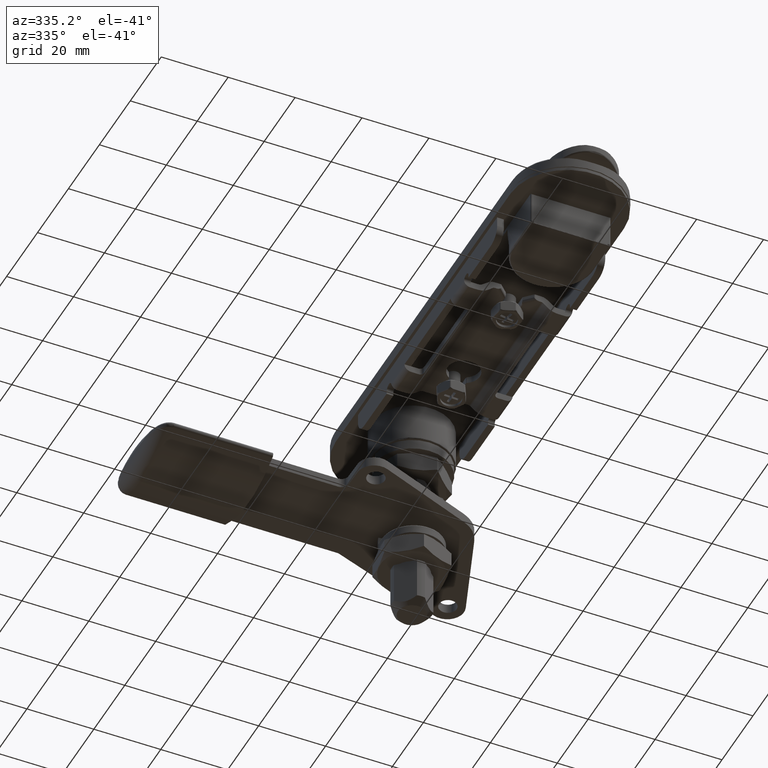
[diagram: clean part render]
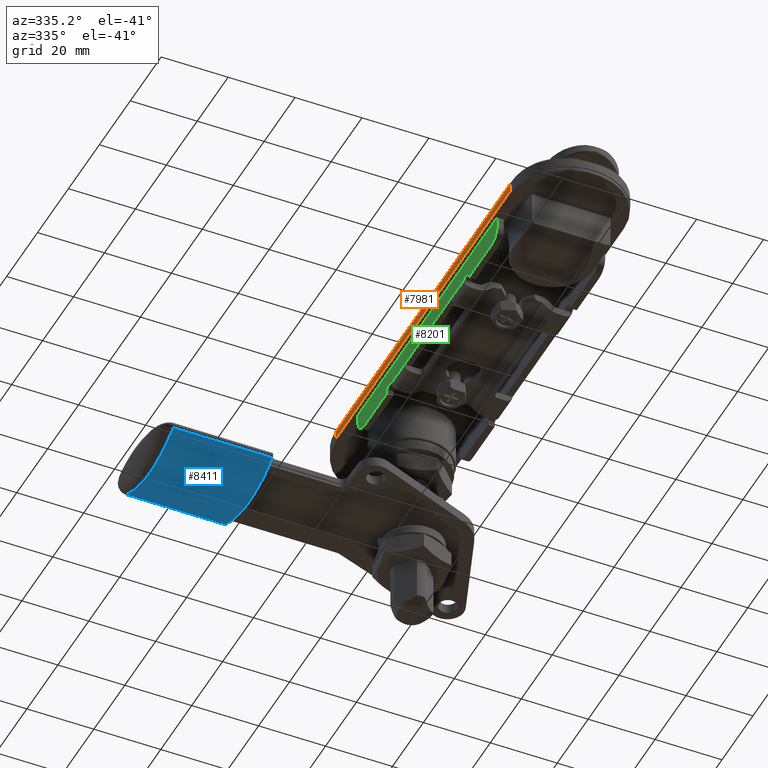
[diagram: same view with three faces highlighted in distinct colors, each labeled with its STEP entity id]
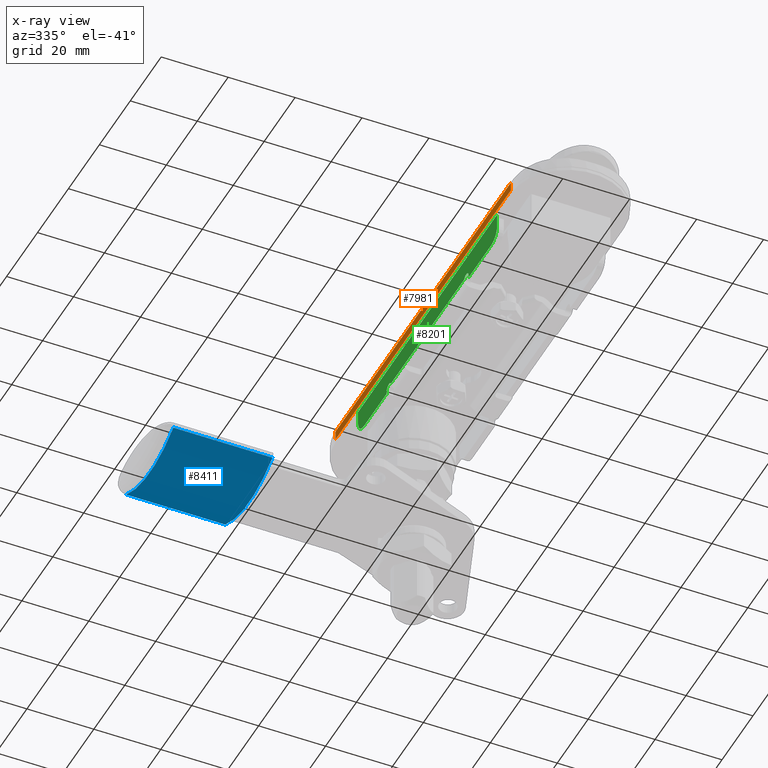
[diagram: x-ray of the same camera — body ghosted, the three highlighted faces saturated]
A machine part, auxiliary view with three faces highlighted in distinct colors.
The next image is the same camera in x-ray (body ghosted, the three faces saturated) — at least one of them is partly hidden behind the body in this view.
Their STEP definitions:

[orange] entity #7981 — the highlighted planar face has unit normal (-1, -0, 0).
#1094=FACE_OUTER_BOUND('',#1589,.T.);
#1589=EDGE_LOOP('',(#5466,#5467,#5468,#5469));
#2162=LINE('',#11909,#2772);
#2166=LINE('',#12180,#2776);
#2167=LINE('',#12182,#2777);
#2168=LINE('',#12183,#2778);
#2772=VECTOR('',#9453,113.3);
#2776=VECTOR('',#9475,2.69277599463048);
#2777=VECTOR('',#9476,113.3);
#2778=VECTOR('',#9477,2.69277599463048);
#3395=VERTEX_POINT('',#11895);
#3397=VERTEX_POINT('',#11907);
#3414=VERTEX_POINT('',#12179);
#3415=VERTEX_POINT('',#12181);
#4195=EDGE_CURVE('',#3397,#3395,#2162,.T.);
#4221=EDGE_CURVE('',#3414,#3397,#2166,.T.);
#4222=EDGE_CURVE('',#3414,#3415,#2167,.T.);
#4223=EDGE_CURVE('',#3415,#3395,#2168,.T.);
#5466=ORIENTED_EDGE('',*,*,#4195,.F.);
#5467=ORIENTED_EDGE('',*,*,#4221,.F.);
#5468=ORIENTED_EDGE('',*,*,#4222,.T.);
#5469=ORIENTED_EDGE('',*,*,#4223,.T.);
#7746=PLANE('',#8508);
#7981=ADVANCED_FACE('',(#1094),#7746,.T.);
#8508=AXIS2_PLACEMENT_3D('',#12178,#9473,#9474);
#9453=DIRECTION('',(2.74371091699068E-16,-1.,2.62687109302066E-17));
#9473=DIRECTION('center_axis',(-1.,-2.74371091699068E-16,0.));
#9474=DIRECTION('ref_axis',(3.5527136788005E-16,-1.,0.));
#9475=DIRECTION('',(0.,0.,1.));
#9476=DIRECTION('',(2.74371091699068E-16,-1.,0.));
#9477=DIRECTION('',(0.,0.,1.));
#11895=CARTESIAN_POINT('',(-17.,-56.65,2.69277599463048));
#11907=CARTESIAN_POINT('',(-17.,56.65,2.69277599463048));
#11909=CARTESIAN_POINT('',(-17.,57.65,2.69277599463048));
#12178=CARTESIAN_POINT('Origin',(-17.,56.65,0.));
#12179=CARTESIAN_POINT('',(-17.,56.65,0.));
#12180=CARTESIAN_POINT('',(-17.,56.65,0.));
#12181=CARTESIAN_POINT('',(-17.,-56.65,0.));
#12182=CARTESIAN_POINT('',(-17.,56.65,0.));
#12183=CARTESIAN_POINT('',(-17.,-56.65,0.));

[blue] entity #8411 — the highlighted cylindrical surface (partial cylindrical patch) has radius 30.1953 mm, axis along (-1, -0, -0).
#427=CYLINDRICAL_SURFACE('',#9262,30.1953125);
#1039=CIRCLE('',#9249,30.1953125);
#1046=CIRCLE('',#9261,30.1953125);
#1524=FACE_OUTER_BOUND('',#2086,.T.);
#2086=EDGE_LOOP('',(#7564,#7565,#7566,#7567));
#2669=LINE('',#16767,#3279);
#2674=LINE('',#16783,#3284);
#3279=VECTOR('',#11474,29.6);
#3284=VECTOR('',#11491,29.6);
#4064=VERTEX_POINT('',#16585);
#4069=VERTEX_POINT('',#16735);
#4072=VERTEX_POINT('',#16766);
#4073=VERTEX_POINT('',#16771);
#5237=EDGE_CURVE('',#4064,#4069,#1039,.T.);
#5244=EDGE_CURVE('',#4072,#4069,#2669,.T.);
#5247=EDGE_CURVE('',#4073,#4072,#1046,.T.);
#5252=EDGE_CURVE('',#4073,#4064,#2674,.T.);
#7564=ORIENTED_EDGE('',*,*,#5237,.F.);
#7565=ORIENTED_EDGE('',*,*,#5252,.F.);
#7566=ORIENTED_EDGE('',*,*,#5247,.T.);
#7567=ORIENTED_EDGE('',*,*,#5244,.T.);
#8411=ADVANCED_FACE('',(#1524),#427,.T.);
#9249=AXIS2_PLACEMENT_3D('',#16754,#11456,#11457);
#9261=AXIS2_PLACEMENT_3D('',#16773,#11483,#11484);
#9262=AXIS2_PLACEMENT_3D('',#16782,#11489,#11490);
#11456=DIRECTION('center_axis',(1.,0.,0.));
#11457=DIRECTION('ref_axis',(0.,-7.35361175430893E-17,1.));
#11474=DIRECTION('',(1.,0.,0.));
#11483=DIRECTION('center_axis',(1.,0.,0.));
#11484=DIRECTION('ref_axis',(0.,0.505218089376505,0.862991704575863));
#11489=DIRECTION('center_axis',(1.,0.,0.));
#11490=DIRECTION('ref_axis',(0.,0.505218089376505,0.862991704575863));
#11491=DIRECTION('',(1.,0.,0.));
#16585=CARTESIAN_POINT('',(78.3124891681028,15.2552180893765,0.862991704575863));
#16735=CARTESIAN_POINT('',(78.3124891681028,-15.2552180893765,0.862991704575864));
#16754=CARTESIAN_POINT('Origin',(78.3124891681028,8.88178419700125E-15,
-25.1953125));
#16766=CARTESIAN_POINT('',(48.7124891681028,-15.2552180893765,0.862991704575865));
#16767=CARTESIAN_POINT('',(48.7124891681028,-15.2552180893765,0.862991704575865));
#16771=CARTESIAN_POINT('',(48.7124891681028,15.2552180893765,0.862991704575864));
#16773=CARTESIAN_POINT('Origin',(48.7124891681028,8.88178419700125E-15,
-25.1953125));
#16782=CARTESIAN_POINT('Origin',(48.7124891681028,8.88178419700125E-15,
-25.1953125));
#16783=CARTESIAN_POINT('',(48.7124891681028,15.2552180893765,0.862991704575864));

[green] entity #8201 — the highlighted planar face has unit normal (-1, 0, -0).
#881=CIRCLE('',#8917,1.5);
#883=CIRCLE('',#8920,1.5);
#884=CIRCLE('',#8921,4.);
#885=CIRCLE('',#8922,4.);
#1314=FACE_OUTER_BOUND('',#1833,.T.);
#1833=EDGE_LOOP('',(#6640,#6641,#6642,#6643,#6644,#6645,#6646,#6647,#6648,
#6649,#6650,#6651,#6652,#6653));
#2463=LINE('',#14040,#3073);
#2473=LINE('',#14071,#3083);
#2476=LINE('',#14095,#3086);
#2502=LINE('',#14164,#3112);
#2503=LINE('',#14166,#3113);
#2504=LINE('',#14170,#3114);
#2505=LINE('',#14172,#3115);
#2506=LINE('',#14174,#3116);
#2507=LINE('',#14178,#3117);
#2508=LINE('',#14179,#3118);
#3073=VECTOR('',#10532,29.9);
#3083=VECTOR('',#10554,8.72335008385784);
#3086=VECTOR('',#10561,8.72335008385783);
#3112=VECTOR('',#10635,0.79999999999999);
#3113=VECTOR('',#10636,14.5);
#3114=VECTOR('',#10639,3.99999999999999);
#3115=VECTOR('',#10640,90.);
#3116=VECTOR('',#10641,4.);
#3117=VECTOR('',#10644,14.5);
#3118=VECTOR('',#10645,0.799999999999997);
#3742=VERTEX_POINT('',#13905);
#3751=VERTEX_POINT('',#13944);
#3778=VERTEX_POINT('',#14070);
#3781=VERTEX_POINT('',#14086);
#3797=VERTEX_POINT('',#14155);
#3799=VERTEX_POINT('',#14161);
#3800=VERTEX_POINT('',#14163);
#3801=VERTEX_POINT('',#14165);
#3802=VERTEX_POINT('',#14167);
#3803=VERTEX_POINT('',#14169);
#3804=VERTEX_POINT('',#14171);
#3805=VERTEX_POINT('',#14173);
#3806=VERTEX_POINT('',#14175);
#3807=VERTEX_POINT('',#14177);
#4760=EDGE_CURVE('',#3751,#3742,#2463,.T.);
#4772=EDGE_CURVE('',#3742,#3778,#2473,.T.);
#4778=EDGE_CURVE('',#3781,#3751,#2476,.T.);
#4811=EDGE_CURVE('',#3778,#3797,#881,.T.);
#4814=EDGE_CURVE('',#3799,#3781,#883,.T.);
#4815=EDGE_CURVE('',#3800,#3799,#2502,.T.);
#4816=EDGE_CURVE('',#3801,#3800,#2503,.T.);
#4817=EDGE_CURVE('',#3802,#3801,#884,.T.);
#4818=EDGE_CURVE('',#3803,#3802,#2504,.T.);
#4819=EDGE_CURVE('',#3804,#3803,#2505,.T.);
#4820=EDGE_CURVE('',#3804,#3805,#2506,.T.);
#4821=EDGE_CURVE('',#3806,#3805,#885,.T.);
#4822=EDGE_CURVE('',#3807,#3806,#2507,.T.);
#4823=EDGE_CURVE('',#3797,#3807,#2508,.T.);
#6640=ORIENTED_EDGE('',*,*,#4778,.F.);
#6641=ORIENTED_EDGE('',*,*,#4814,.F.);
#6642=ORIENTED_EDGE('',*,*,#4815,.F.);
#6643=ORIENTED_EDGE('',*,*,#4816,.F.);
#6644=ORIENTED_EDGE('',*,*,#4817,.F.);
#6645=ORIENTED_EDGE('',*,*,#4818,.F.);
#6646=ORIENTED_EDGE('',*,*,#4819,.F.);
#6647=ORIENTED_EDGE('',*,*,#4820,.T.);
#6648=ORIENTED_EDGE('',*,*,#4821,.F.);
#6649=ORIENTED_EDGE('',*,*,#4822,.F.);
#6650=ORIENTED_EDGE('',*,*,#4823,.F.);
#6651=ORIENTED_EDGE('',*,*,#4811,.F.);
#6652=ORIENTED_EDGE('',*,*,#4772,.F.);
#6653=ORIENTED_EDGE('',*,*,#4760,.F.);
#7848=PLANE('',#8919);
#8201=ADVANCED_FACE('',(#1314),#7848,.T.);
#8917=AXIS2_PLACEMENT_3D('',#14156,#10626,#10627);
#8919=AXIS2_PLACEMENT_3D('',#14160,#10631,#10632);
#8920=AXIS2_PLACEMENT_3D('',#14162,#10633,#10634);
#8921=AXIS2_PLACEMENT_3D('',#14168,#10637,#10638);
#8922=AXIS2_PLACEMENT_3D('',#14176,#10642,#10643);
#10532=DIRECTION('',(-1.,-9.86864910777917E-17,0.));
#10554=DIRECTION('',(-1.,-9.86864910777917E-17,0.));
#10561=DIRECTION('',(-1.,-9.86864910777917E-17,0.));
#10626=DIRECTION('center_axis',(-9.86864910777917E-17,1.,0.));
#10627=DIRECTION('ref_axis',(-1.,0.,0.));
#10631=DIRECTION('center_axis',(-9.86864910777917E-17,1.,0.));
#10632=DIRECTION('ref_axis',(0.,0.,1.));
#10633=DIRECTION('center_axis',(-9.86864910777917E-17,1.,0.));
#10634=DIRECTION('ref_axis',(-1.,0.,0.));
#10635=DIRECTION('',(5.55111512312585E-15,5.47820073070154E-31,-1.));
#10636=DIRECTION('',(-1.,-9.86864910777917E-17,7.65671051465625E-17));
#10637=DIRECTION('center_axis',(9.86864910777917E-17,-1.,0.));
#10638=DIRECTION('ref_axis',(0.,0.,1.));
#10639=DIRECTION('',(0.,0.,1.));
#10640=DIRECTION('',(1.,9.86864910777917E-17,0.));
#10641=DIRECTION('',(0.,0.,1.));
#10642=DIRECTION('center_axis',(9.86864910777917E-17,-1.,0.));
#10643=DIRECTION('ref_axis',(-1.,0.,1.38777878078144E-16));
#10644=DIRECTION('',(-1.,-9.86864910777917E-17,2.29701315439688E-16));
#10645=DIRECTION('',(-5.5511151231258E-15,-5.47820073070149E-31,1.));
#13905=CARTESIAN_POINT('',(-14.95,16.15,6.5));
#13944=CARTESIAN_POINT('',(14.95,16.15,6.5));
#14040=CARTESIAN_POINT('',(-22.5,16.15,6.5));
#14070=CARTESIAN_POINT('',(-23.6733500838578,16.15,6.5));
#14071=CARTESIAN_POINT('',(-22.5,16.15,6.5));
#14086=CARTESIAN_POINT('',(23.6733500838578,16.15,6.5));
#14095=CARTESIAN_POINT('',(-22.5,16.15,6.5));
#14155=CARTESIAN_POINT('',(-26.5,16.15,7.2));
#14156=CARTESIAN_POINT('Origin',(-25.,16.15,7.2));
#14160=CARTESIAN_POINT('Origin',(-45.,16.15,0.));
#14161=CARTESIAN_POINT('',(26.5,16.15,7.2));
#14162=CARTESIAN_POINT('Origin',(25.,16.15,7.2));
#14163=CARTESIAN_POINT('',(26.5,16.15,7.99999999999999));
#14164=CARTESIAN_POINT('',(26.5,16.15,4.00000000000019));
#14165=CARTESIAN_POINT('',(41.,16.15,7.99999999999999));
#14166=CARTESIAN_POINT('',(-2.,16.15,7.99999999999999));
#14167=CARTESIAN_POINT('',(45.,16.15,3.99999999999999));
#14168=CARTESIAN_POINT('Origin',(41.,16.15,3.99999999999999));
#14169=CARTESIAN_POINT('',(45.,16.15,0.));
#14170=CARTESIAN_POINT('',(45.,16.15,0.));
#14171=CARTESIAN_POINT('',(-45.,16.15,0.));
#14172=CARTESIAN_POINT('',(-45.,16.15,0.));
#14173=CARTESIAN_POINT('',(-45.,16.15,4.));
#14174=CARTESIAN_POINT('',(-45.,16.15,0.));
#14175=CARTESIAN_POINT('',(-41.,16.15,8.));
#14176=CARTESIAN_POINT('Origin',(-41.,16.15,4.));
#14177=CARTESIAN_POINT('',(-26.5,16.15,8.));
#14178=CARTESIAN_POINT('',(-35.75,16.15,8.));
#14179=CARTESIAN_POINT('',(-26.5,16.15,3.60000000000005));